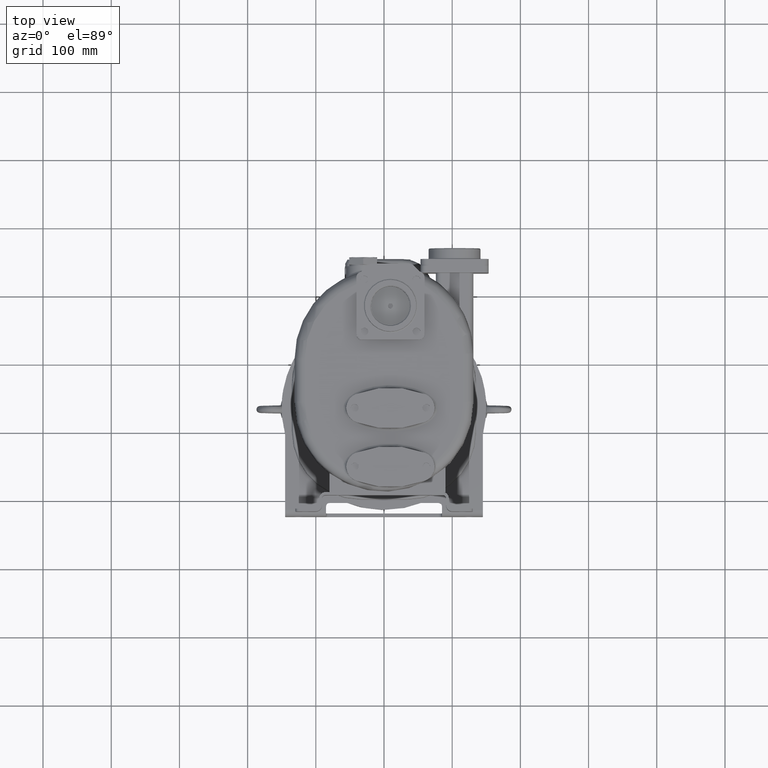
[diagram: clean part render]
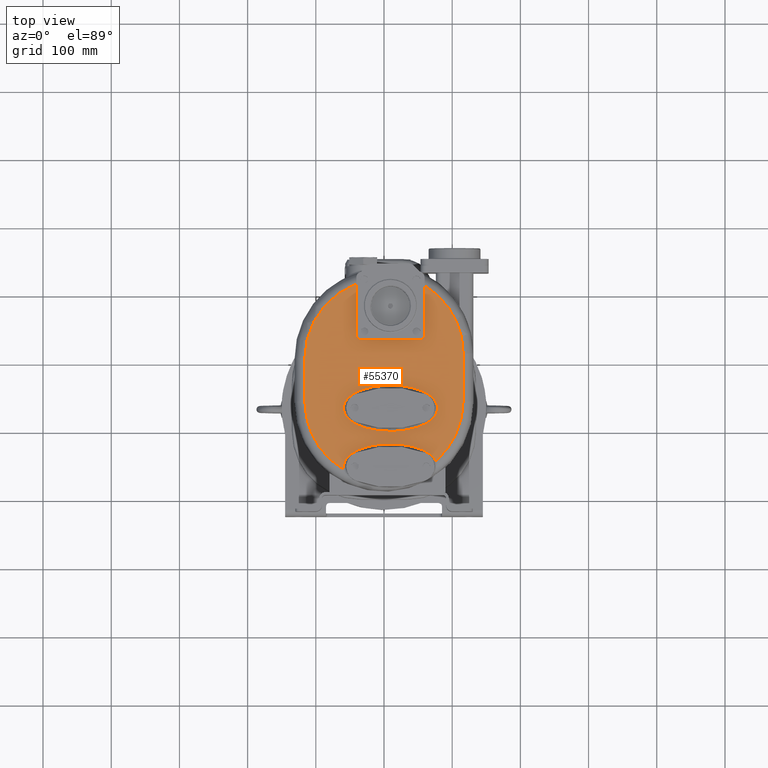
[diagram: same view with one face highlighted and labeled with its STEP entity id]
A machine part, top view. The second image highlights one B-rep face of the part: STEP entity #55370.
In plain terms, the highlighted planar face has unit normal (0, 0, -1).
Its self-contained STEP definition (entity closure, byte-faithful):
#1193=DIRECTION('',(0.E0,1.E0,0.E0));
#1194=VECTOR('',#1193,7.187848566518E1);
#1195=CARTESIAN_POINT('',(5.95E1,2.29E2,9.1E1));
#1196=LINE('',#1195,#1194);
#1238=DIRECTION('',(1.E0,0.E0,0.E0));
#1239=VECTOR('',#1238,8.4E1);
#1240=CARTESIAN_POINT('',(-3.25E1,2.21E2,9.1E1));
#1241=LINE('',#1240,#1239);
#1283=DIRECTION('',(0.E0,-1.E0,0.E0));
#1284=VECTOR('',#1283,7.407165380998E1);
#1285=CARTESIAN_POINT('',(-4.05E1,3.030716538100E2,9.1E1));
#1286=LINE('',#1285,#1284);
#2180=CARTESIAN_POINT('',(-3.25E1,2.29E2,9.1E1));
#2181=DIRECTION('',(0.E0,0.E0,-1.E0));
#2182=DIRECTION('',(0.E0,-1.E0,0.E0));
#2183=AXIS2_PLACEMENT_3D('',#2180,#2181,#2182);
#2185=CARTESIAN_POINT('',(-5.949999999997E1,3.500000000005E1,9.100000769140E1));
#2186=CARTESIAN_POINT('',(-5.949999653014E1,3.481966164502E1,9.100000967008E1));
#2187=CARTESIAN_POINT('',(-5.949451643429E1,3.445820326080E1,9.099999554707E1));
#2188=CARTESIAN_POINT('',(-5.946969862291E1,3.391333252313E1,9.100000108015E1));
#2189=CARTESIAN_POINT('',(-5.942800869430E1,3.336679300740E1,9.100000013233E1));
#2190=CARTESIAN_POINT('',(-5.936937491779E1,3.281920225739E1,9.099999839053E1));
#2191=CARTESIAN_POINT('',(-5.929376160975E1,3.227129884937E1,9.100000630556E1));
#2192=CARTESIAN_POINT('',(-5.920111112034E1,3.172373459291E1,9.099997638722E1));
#2193=CARTESIAN_POINT('',(-5.912812855650E1,3.135953007896E1,9.100005089278E1));
#2194=CARTESIAN_POINT('',(-5.908881446780E1,3.117760166446E1,9.100004992876E1));
#2196=CARTESIAN_POINT('',(0.E0,1.31E2,9.1E1));
#2197=DIRECTION('',(0.E0,0.E0,1.E0));
#2198=DIRECTION('',(-1.E0,0.E0,0.E0));
#2199=AXIS2_PLACEMENT_3D('',#2196,#2197,#2198);
#2201=DIRECTION('',(0.E0,-1.E0,0.E0));
#2202=VECTOR('',#2201,6.337137782137E1);
#2203=CARTESIAN_POINT('',(-1.16E2,1.943713778214E2,9.1E1));
#2204=LINE('',#2203,#2202);
#2205=CARTESIAN_POINT('',(0.E0,1.943713778214E2,9.1E1));
#2206=DIRECTION('',(0.E0,0.E0,1.E0));
#2207=DIRECTION('',(-3.491379310345E-1,9.370713447294E-1,0.E0));
#2208=AXIS2_PLACEMENT_3D('',#2205,#2206,#2207);
#2210=CARTESIAN_POINT('',(0.E0,2.013006266804E2,9.1E1));
#2211=DIRECTION('',(0.E0,0.E0,1.E0));
#2212=DIRECTION('',(1.E0,0.E0,0.E0));
#2213=AXIS2_PLACEMENT_3D('',#2210,#2211,#2212);
#2215=DIRECTION('',(0.E0,1.E0,0.E0));
#2216=VECTOR('',#2215,7.030062668036E1);
#2217=CARTESIAN_POINT('',(1.16E2,1.31E2,9.1E1));
#2218=LINE('',#2217,#2216);
#2219=CARTESIAN_POINT('',(0.E0,1.31E2,9.1E1));
#2220=DIRECTION('',(0.E0,0.E0,1.E0));
#2221=DIRECTION('',(6.581616302015E-1,-7.528766622300E-1,0.E0));
#2222=AXIS2_PLACEMENT_3D('',#2219,#2220,#2221);
#2224=CARTESIAN_POINT('',(7.634674873565E1,4.366630732680E1,9.099992128087E1));
#2225=CARTESIAN_POINT('',(7.623591954856E1,4.388428892146E1,9.099990623291E1));
#2226=CARTESIAN_POINT('',(7.600425811067E1,4.432211420032E1,9.100004351746E1));
#2227=CARTESIAN_POINT('',(7.562565516244E1,4.498342295932E1,9.099998833953E1));
#2228=CARTESIAN_POINT('',(7.521456790700E1,4.564994968869E1,9.100000312441E1));
#2229=CARTESIAN_POINT('',(7.476955411012E1,4.632165363997E1,9.099999916282E1));
#2230=CARTESIAN_POINT('',(7.428918038869E1,4.699842598802E1,9.100000022432E1));
#2231=CARTESIAN_POINT('',(7.377183848311E1,4.768017087183E1,9.099999993989E1));
#2232=CARTESIAN_POINT('',(7.321527536123E1,4.836749061023E1,9.100000001611E1));
#2233=CARTESIAN_POINT('',(7.261721462709E1,4.906074719168E1,9.099999999568E1));
#2234=CARTESIAN_POINT('',(7.197547896219E1,4.976004457628E1,9.100000000116E1));
#2235=CARTESIAN_POINT('',(7.128758283862E1,5.046535889293E1,9.099999999969E1));
#2236=CARTESIAN_POINT('',(7.055072400298E1,5.117679117302E1,9.100000000008E1));
#2237=CARTESIAN_POINT('',(6.976231433797E1,5.189419816287E1,9.099999999998E1));
#2238=CARTESIAN_POINT('',(6.891945931446E1,5.261727563751E1,9.100000000001E1));
#2239=CARTESIAN_POINT('',(6.801883341086E1,5.334585055344E1,9.1E1));
#2240=CARTESIAN_POINT('',(6.705743494183E1,5.407951227066E1,9.1E1));
#2241=CARTESIAN_POINT('',(6.603177854466E1,5.481762664493E1,9.1E1));
#2242=CARTESIAN_POINT('',(6.493838483149E1,5.555956620236E1,9.1E1));
#2243=CARTESIAN_POINT('',(6.377384710976E1,5.630440817789E1,9.1E1));
#2244=CARTESIAN_POINT('',(6.253448013082E1,5.705102957950E1,9.1E1));
#2245=CARTESIAN_POINT('',(6.121688728581E1,5.779820037497E1,9.1E1));
#2246=CARTESIAN_POINT('',(5.981749851625E1,5.854430083567E1,9.1E1));
#2247=CARTESIAN_POINT('',(5.833302629866E1,5.928766511601E1,9.1E1));
#2248=CARTESIAN_POINT('',(5.676028446961E1,6.002618843146E1,9.1E1));
#2249=CARTESIAN_POINT('',(5.509639720881E1,6.075765728232E1,9.1E1));
#2250=CARTESIAN_POINT('',(5.333880452463E1,6.147951640779E1,9.1E1));
#2251=CARTESIAN_POINT('',(5.148536832232E1,6.218896968749E1,9.1E1));
#2252=CARTESIAN_POINT('',(4.953442918438E1,6.288304523965E1,9.1E1));
#2253=CARTESIAN_POINT('',(4.748501263447E1,6.355840844292E1,9.1E1));
#2254=CARTESIAN_POINT('',(4.533679761953E1,6.421163110257E1,9.1E1));
#2255=CARTESIAN_POINT('',(4.309035688096E1,6.483902689590E1,9.1E1));
#2256=CARTESIAN_POINT('',(4.074716158862E1,6.543676484727E1,9.1E1));
#2257=CARTESIAN_POINT('',(3.830958713732E1,6.600098846359E1,9.1E1));
#2258=CARTESIAN_POINT('',(3.578110664967E1,6.652775775335E1,9.1E1));
#2259=CARTESIAN_POINT('',(3.316633740869E1,6.701314165868E1,9.1E1));
#2260=CARTESIAN_POINT('',(3.047086257878E1,6.745341391894E1,9.1E1));
#2261=CARTESIAN_POINT('',(2.770162354879E1,6.784488343396E1,9.1E1));
#2262=CARTESIAN_POINT('',(2.486641120822E1,6.818425221210E1,9.1E1));
#2263=CARTESIAN_POINT('',(2.197416819244E1,6.846848199109E1,9.1E1));
#2264=CARTESIAN_POINT('',(1.903470759520E1,6.869496152501E1,9.1E1));
#2265=CARTESIAN_POINT('',(1.605864099120E1,6.886159472386E1,9.1E1));
#2266=CARTESIAN_POINT('',(1.305715451046E1,6.896675811104E1,9.1E1));
#2267=CARTESIAN_POINT('',(1.004187131840E1,6.900947420078E1,9.1E1));
#2268=CARTESIAN_POINT('',(7.024540483296E0,6.898932175360E1,9.1E1));
#2269=CARTESIAN_POINT('',(4.017124150174E0,6.890649338142E1,9.1E1));
#2270=CARTESIAN_POINT('',(1.031209244925E0,6.876184048859E1,9.1E1));
#2271=CARTESIAN_POINT('',(-1.921828307473E0,6.855669463666E1,9.1E1));
#2272=CARTESIAN_POINT('',(-4.831241793811E0,6.829307982827E1,9.1E1));
#2273=CARTESIAN_POINT('',(-7.686975839886E0,6.797335027053E1,9.1E1));
#2274=CARTESIAN_POINT('',(-1.047982563726E1,6.760046125114E1,9.1E1));
#2275=CARTESIAN_POINT('',(-1.320161167719E1,6.717757909930E1,9.1E1));
#2276=CARTESIAN_POINT('',(-1.584521878216E1,6.670825402815E1,9.1E1));
#2277=CARTESIAN_POINT('',(-1.840451724933E1,6.619621610012E1,9.1E1));
#2278=CARTESIAN_POINT('',(-2.087463231715E1,6.564528484831E1,9.1E1));
#2279=CARTESIAN_POINT('',(-2.325159052093E1,6.505944226801E1,9.1E1));
#2280=CARTESIAN_POINT('',(-2.553263215422E1,6.444255783718E1,9.1E1));
#2281=CARTESIAN_POINT('',(-2.771593615844E1,6.379848045075E1,9.1E1));
#2282=CARTESIAN_POINT('',(-2.980055395630E1,6.313098863607E1,9.1E1));
#2283=CARTESIAN_POINT('',(-3.178647552272E1,6.244359425549E1,9.1E1));
#2284=CARTESIAN_POINT('',(-3.367447942084E1,6.173967258939E1,9.1E1));
#2285=CARTESIAN_POINT('',(-3.546599550190E1,6.102233096757E1,9.1E1));
#2286=CARTESIAN_POINT('',(-3.716304595301E1,6.029438622664E1,9.1E1));
#2287=CARTESIAN_POINT('',(-3.876804257682E1,5.955852464740E1,9.1E1));
#2288=CARTESIAN_POINT('',(-4.028376172088E1,5.881701338161E1,9.1E1));
#2289=CARTESIAN_POINT('',(-4.171329918279E1,5.807206449995E1,9.1E1));
#2290=CARTESIAN_POINT('',(-4.305989420712E1,5.732541240763E1,9.1E1));
#2291=CARTESIAN_POINT('',(-4.432704230581E1,5.657878569088E1,9.1E1));
#2292=CARTESIAN_POINT('',(-4.551810553065E1,5.583348241152E1,9.1E1));
#2293=CARTESIAN_POINT('',(-4.663673794789E1,5.509077440177E1,9.1E1));
#2294=CARTESIAN_POINT('',(-4.768634309590E1,5.435157801988E1,9.1E1));
#2295=CARTESIAN_POINT('',(-4.867053831125E1,5.361660662872E1,9.1E1));
#2296=CARTESIAN_POINT('',(-4.959274032755E1,5.288655588242E1,9.1E1));
#2297=CARTESIAN_POINT('',(-5.045615750690E1,5.216175304245E1,9.1E1));
#2298=CARTESIAN_POINT('',(-5.126417995939E1,5.144246123235E1,9.1E1));
#2299=CARTESIAN_POINT('',(-5.201961796663E1,5.072902638192E1,9.1E1));
#2300=CARTESIAN_POINT('',(-5.272533239298E1,5.002145292432E1,9.1E1));
#2301=CARTESIAN_POINT('',(-5.338408651439E1,4.931979879214E1,9.1E1));
#2302=CARTESIAN_POINT('',(-5.399822802261E1,4.862412490234E1,9.1E1));
#2303=CARTESIAN_POINT('',(-5.457021645381E1,4.793420364726E1,9.1E1));
#2304=CARTESIAN_POINT('',(-5.510217292734E1,4.725001030420E1,9.1E1));
#2305=CARTESIAN_POINT('',(-5.559607878208E1,4.657137932392E1,9.1E1));
#2306=CARTESIAN_POINT('',(-5.605386878028E1,4.589802368800E1,9.1E1));
#2307=CARTESIAN_POINT('',(-5.647720040911E1,4.522982686230E1,9.1E1));
#2308=CARTESIAN_POINT('',(-5.686771584928E1,4.456642984479E1,9.1E1));
#2309=CARTESIAN_POINT('',(-5.722682427135E1,4.390761417957E1,9.1E1));
#2310=CARTESIAN_POINT('',(-5.755584819394E1,4.325315742979E1,9.1E1));
#2311=CARTESIAN_POINT('',(-5.785600579984E1,4.260267646915E1,9.1E1));
#2312=CARTESIAN_POINT('',(-5.812843082222E1,4.195583374795E1,9.099999999999E1));
#2313=CARTESIAN_POINT('',(-5.837414397422E1,4.131215080959E1,9.100000000003E1));
#2314=CARTESIAN_POINT('',(-5.859389792340E1,4.067154153744E1,9.099999999988E1));
#2315=CARTESIAN_POINT('',(-5.878845408130E1,4.003396898141E1,9.100000000046E1));
#2316=CARTESIAN_POINT('',(-5.895849048363E1,3.939901562096E1,9.099999999827E1));
#2317=CARTESIAN_POINT('',(-5.910472315376E1,3.876598470378E1,9.100000000647E1));
#2318=CARTESIAN_POINT('',(-5.922778089033E1,3.813401633474E1,9.099999997585E1));
#2319=CARTESIAN_POINT('',(-5.932786628178E1,3.750309292868E1,9.100000009012E1));
#2320=CARTESIAN_POINT('',(-5.940521712461E1,3.687377088121E1,9.099999966367E1));
#2321=CARTESIAN_POINT('',(-5.946013249716E1,3.624646853708E1,9.100000125522E1));
#2322=CARTESIAN_POINT('',(-5.949278338985E1,3.562153118643E1,9.099999531546E1));
#2323=CARTESIAN_POINT('',(-5.949999584220E1,3.520687115340E1,9.100001009379E1));
#2324=CARTESIAN_POINT('',(-5.949999999997E1,3.500000000005E1,9.100000769140E1));
#2326=CARTESIAN_POINT('',(7.849999999934E1,1.209999999825E2,9.100002976873E1));
#2327=CARTESIAN_POINT('',(7.849992761562E1,1.212089889872E2,9.100006599222E1));
#2328=CARTESIAN_POINT('',(7.849219890357E1,1.216269893767E2,9.099996937291E1));
#2329=CARTESIAN_POINT('',(7.845893867935E1,1.222539462229E2,9.100000820650E1));
#2330=CARTESIAN_POINT('',(7.840367739163E1,1.228811931141E2,9.099999780107E1));
#2331=CARTESIAN_POINT('',(7.832642105446E1,1.235089220575E2,9.100000058920E1));
#2332=CARTESIAN_POINT('',(7.822688290528E1,1.241373113750E2,9.099999984212E1));
#2333=CARTESIAN_POINT('',(7.810465088703E1,1.247665035796E2,9.100000004230E1));
#2334=CARTESIAN_POINT('',(7.795914833509E1,1.253964641631E2,9.099999998867E1));
#2335=CARTESIAN_POINT('',(7.779008056208E1,1.260278109559E2,9.100000000304E1));
#2336=CARTESIAN_POINT('',(7.759680121310E1,1.266617583855E2,9.099999999919E1));
#2337=CARTESIAN_POINT('',(7.737846503212E1,1.272993002829E2,9.100000000022E1));
#2338=CARTESIAN_POINT('',(7.713407249661E1,1.279411465157E2,9.099999999994E1));
#2339=CARTESIAN_POINT('',(7.686299434873E1,1.285866558382E2,9.100000000002E1));
#2340=CARTESIAN_POINT('',(7.656455821451E1,1.292351134745E2,9.1E1));
#2341=CARTESIAN_POINT('',(7.623815209005E1,1.298859880422E2,9.1E1));
#2342=CARTESIAN_POINT('',(7.588217024686E1,1.305408311377E2,9.1E1));
#2343=CARTESIAN_POINT('',(7.549474793897E1,1.312009591928E2,9.1E1));
#2344=CARTESIAN_POINT('',(7.507418688482E1,1.318669354104E2,9.1E1));
#2345=CARTESIAN_POINT('',(7.461935548003E1,1.325381952809E2,9.1E1));
#2346=CARTESIAN_POINT('',(7.412911822654E1,1.332141469229E2,9.1E1));
#2347=CARTESIAN_POINT('',(7.360135916157E1,1.338953844826E2,9.1E1));
#2348=CARTESIAN_POINT('',(7.303380020100E1,1.345824369952E2,9.1E1));
#2349=CARTESIAN_POINT('',(7.242422009113E1,1.352755582272E2,9.1E1));
#2350=CARTESIAN_POINT('',(7.177042576833E1,1.359747604409E2,9.1E1));
#2351=CARTESIAN_POINT('',(7.106970218984E1,1.366801527912E2,9.1E1));
#2352=CARTESIAN_POINT('',(7.031938981153E1,1.373916778025E2,9.1E1));
#2353=CARTESIAN_POINT('',(6.951698498771E1,1.381090617436E2,9.1E1));
#2354=CARTESIAN_POINT('',(6.865929352639E1,1.388321272567E2,9.1E1));
#2355=CARTESIAN_POINT('',(6.774321824092E1,1.395605591095E2,9.1E1));
#2356=CARTESIAN_POINT('',(6.676575263717E1,1.402938451072E2,9.1E1));
#2357=CARTESIAN_POINT('',(6.572326679996E1,1.410313886340E2,9.1E1));
#2358=CARTESIAN_POINT('',(6.461249692826E1,1.417724797047E2,9.1E1));
#2359=CARTESIAN_POINT('',(6.342990575365E1,1.425161018842E2,9.1E1));
#2360=CARTESIAN_POINT('',(6.217203069811E1,1.432611115221E2,9.1E1));
#2361=CARTESIAN_POINT('',(6.083547492816E1,1.440061424772E2,9.1E1));
#2362=CARTESIAN_POINT('',(5.941673749575E1,1.447496309239E2,9.1E1));
#2363=CARTESIAN_POINT('',(5.791259942696E1,1.454897761605E2,9.1E1));
#2364=CARTESIAN_POINT('',(5.631998559319E1,1.462245099165E2,9.1E1));
#2365=CARTESIAN_POINT('',(5.463614500053E1,1.469514852984E2,9.1E1));
#2366=CARTESIAN_POINT('',(5.285861348603E1,1.476681985137E2,9.1E1));
#2367=CARTESIAN_POINT('',(5.098545029338E1,1.483717453165E2,9.1E1));
#2368=CARTESIAN_POINT('',(4.901521776638E1,1.490591272500E2,9.1E1));
#2369=CARTESIAN_POINT('',(4.694714472128E1,1.497270044215E2,9.1E1));
#2370=CARTESIAN_POINT('',(4.478121629553E1,1.503718772856E2,9.1E1));
#2371=CARTESIAN_POINT('',(4.251815853556E1,1.509901255730E2,9.1E1));
#2372=CARTESIAN_POINT('',(4.015966414029E1,1.515779294036E2,9.1E1));
#2373=CARTESIAN_POINT('',(3.770841489725E1,1.521314320420E2,9.1E1));
#2374=CARTESIAN_POINT('',(3.516804805815E1,1.526467955655E2,9.1E1));
#2375=CARTESIAN_POINT('',(3.254343664376E1,1.531201326125E2,9.1E1));
#2376=CARTESIAN_POINT('',(2.984044849649E1,1.535477806740E2,9.1E1));
#2377=CARTESIAN_POINT('',(2.706600151479E1,1.539262242805E2,9.1E1));
#2378=CARTESIAN_POINT('',(2.422823910650E1,1.542521938771E2,9.1E1));
#2379=CARTESIAN_POINT('',(2.133595119623E1,1.545228774542E2,9.1E1));
#2380=CARTESIAN_POINT('',(1.839922929746E1,1.547357059216E2,9.1E1));
#2381=CARTESIAN_POINT('',(1.542846276781E1,1.548888141503E2,9.1E1));
#2382=CARTESIAN_POINT('',(1.243495452128E1,1.549806302462E2,9.1E1));
#2383=CARTESIAN_POINT('',(9.430092195103E0,1.550104009219E2,9.1E1));
#2384=CARTESIAN_POINT('',(6.425596396743E0,1.549777387126E2,9.1E1));
#2385=CARTESIAN_POINT('',(3.433241382393E0,1.548830504749E2,9.1E1));
#2386=CARTESIAN_POINT('',(4.643411524435E-1,1.547271910816E2,9.1E1));
#2387=CARTESIAN_POINT('',(-2.469798478651E0,1.545116830744E2,9.1E1));
#2388=CARTESIAN_POINT('',(-5.358899181897E0,1.542385173369E2,9.1E1));
#2389=CARTESIAN_POINT('',(-8.192904181548E0,1.539102078524E2,9.1E1));
#2390=CARTESIAN_POINT('',(-1.096316995739E1,1.535296352843E2,9.1E1));
#2391=CARTESIAN_POINT('',(-1.366153668305E1,1.531000834012E2,9.1E1));
#2392=CARTESIAN_POINT('',(-1.628135695962E1,1.526250078150E2,9.1E1));
#2393=CARTESIAN_POINT('',(-1.881663288059E1,1.521081876936E2,9.1E1));
#2394=CARTESIAN_POINT('',(-2.126273401996E1,1.515533816234E2,9.1E1));
#2395=CARTESIAN_POINT('',(-2.361592903349E1,1.509645244300E2,9.1E1));
#2396=CARTESIAN_POINT('',(-2.587356122193E1,1.503454691941E2,9.1E1));
#2397=CARTESIAN_POINT('',(-2.803397406505E1,1.496999922077E2,9.1E1));
#2398=CARTESIAN_POINT('',(-3.009637898248E1,1.490318079849E2,9.1E1));
#2399=CARTESIAN_POINT('',(-3.206082447234E1,1.483443977244E2,9.1E1));
#2400=CARTESIAN_POINT('',(-3.392825548745E1,1.476410108353E2,9.1E1));
#2401=CARTESIAN_POINT('',(-3.570014891302E1,1.469247348710E2,9.1E1));
#2402=CARTESIAN_POINT('',(-3.737857827911E1,1.461982793180E2,9.1E1));
#2403=CARTESIAN_POINT('',(-3.896599760944E1,1.454642904282E2,9.1E1));
#2404=CARTESIAN_POINT('',(-4.046516653456E1,1.447249688369E2,9.1E1));
#2405=CARTESIAN_POINT('',(-4.187919166238E1,1.439824724881E2,9.1E1));
#2406=CARTESIAN_POINT('',(-4.321128901928E1,1.432384884787E2,9.1E1));
#2407=CARTESIAN_POINT('',(-4.446491318001E1,1.424947084739E2,9.1E1));
#2408=CARTESIAN_POINT('',(-4.564340264149E1,1.417523806769E2,9.1E1));
#2409=CARTESIAN_POINT('',(-4.675037499890E1,1.410127609012E2,9.1E1));
#2410=CARTESIAN_POINT('',(-4.778919409954E1,1.402766936807E2,9.1E1));
#2411=CARTESIAN_POINT('',(-4.876346387182E1,1.395448931910E2,9.1E1));
#2412=CARTESIAN_POINT('',(-4.967650613112E1,1.388180189474E2,9.1E1));
#2413=CARTESIAN_POINT('',(-5.053155154721E1,1.380963423265E2,9.1E1));
#2414=CARTESIAN_POINT('',(-5.133189176119E1,1.373801633060E2,9.1E1));
#2415=CARTESIAN_POINT('',(-5.208028016145E1,1.366697937818E2,9.1E1));
#2416=CARTESIAN_POINT('',(-5.277957530295E1,1.359652088936E2,9.1E1));
#2417=CARTESIAN_POINT('',(-5.343244348983E1,1.352665077669E2,9.1E1));
#2418=CARTESIAN_POINT('',(-5.404121509670E1,1.345737118753E2,9.1E1));
#2419=CARTESIAN_POINT('',(-5.460830917762E1,1.338866038930E2,9.1E1));
#2420=CARTESIAN_POINT('',(-5.513578639092E1,1.332051806344E2,9.1E1));
#2421=CARTESIAN_POINT('',(-5.562562163559E1,1.325292438858E2,9.1E1));
#2422=CARTESIAN_POINT('',(-5.607969837878E1,1.318585380667E2,9.1E1));
#2423=CARTESIAN_POINT('',(-5.649965459688E1,1.311929369038E2,9.1E1));
#2424=CARTESIAN_POINT('',(-5.688710797113E1,1.305320791443E2,9.1E1));
#2425=CARTESIAN_POINT('',(-5.724343617396E1,1.298757704681E2,9.1E1));
#2426=CARTESIAN_POINT('',(-5.756995137400E1,1.292237711500E2,9.1E1));
#2427=CARTESIAN_POINT('',(-5.786785013233E1,1.285757062066E2,9.100000000001E1));
#2428=CARTESIAN_POINT('',(-5.813825714870E1,1.279312297107E2,9.099999999997E1));
#2429=CARTESIAN_POINT('',(-5.838216685490E1,1.272898817448E2,9.100000000011E1));
#2430=CARTESIAN_POINT('',(-5.860032073477E1,1.266515933297E2,9.099999999960E1));
#2431=CARTESIAN_POINT('',(-5.879347135739E1,1.260163222831E2,9.100000000148E1));
#2432=CARTESIAN_POINT('',(-5.896229323823E1,1.253836252053E2,9.099999999448E1));
#2433=CARTESIAN_POINT('',(-5.910749510339E1,1.247528123243E2,9.100000002062E1));
#2434=CARTESIAN_POINT('',(-5.922969240762E1,1.241230282071E2,9.099999992306E1));
#2435=CARTESIAN_POINT('',(-5.932907442089E1,1.234943052675E2,9.100000028716E1));
#2436=CARTESIAN_POINT('',(-5.940588288552E1,1.228671859480E2,9.099999892831E1));
#2437=CARTESIAN_POINT('',(-5.946041253910E1,1.222420858428E2,9.100000399961E1));
#2438=CARTESIAN_POINT('',(-5.949283374531E1,1.216193459158E2,9.099998507325E1));
#2439=CARTESIAN_POINT('',(-5.949999585588E1,1.212061437215E2,9.100003216267E1));
#2440=CARTESIAN_POINT('',(-5.949999999934E1,1.210000000175E2,9.100002976873E1));
#2442=CARTESIAN_POINT('',(-5.949999999934E1,1.210000000175E2,9.100002976873E1));
#2443=CARTESIAN_POINT('',(-5.949992761562E1,1.207910110128E2,9.100006599222E1));
#2444=CARTESIAN_POINT('',(-5.949219890357E1,1.203730106233E2,9.099996937291E1));
#2445=CARTESIAN_POINT('',(-5.945893867935E1,1.197460537771E2,9.100000820650E1));
#2446=CARTESIAN_POINT('',(-5.940367739163E1,1.191188068859E2,9.099999780107E1));
#2447=CARTESIAN_POINT('',(-5.932642105446E1,1.184910779425E2,9.100000058920E1));
#2448=CARTESIAN_POINT('',(-5.922688290528E1,1.178626886250E2,9.099999984212E1));
#2449=CARTESIAN_POINT('',(-5.910465088703E1,1.172334964204E2,9.100000004230E1));
#2450=CARTESIAN_POINT('',(-5.895914833509E1,1.166035358369E2,9.099999998867E1));
#2451=CARTESIAN_POINT('',(-5.879008056208E1,1.159721890441E2,9.100000000304E1));
#2452=CARTESIAN_POINT('',(-5.859680121310E1,1.153382416145E2,9.099999999919E1));
#2453=CARTESIAN_POINT('',(-5.837846503212E1,1.147006997171E2,9.100000000022E1));
#2454=CARTESIAN_POINT('',(-5.813407249661E1,1.140588534843E2,9.099999999994E1));
#2455=CARTESIAN_POINT('',(-5.786299434873E1,1.134133441618E2,9.100000000002E1));
#2456=CARTESIAN_POINT('',(-5.756455821451E1,1.127648865255E2,9.1E1));
#2457=CARTESIAN_POINT('',(-5.723815209005E1,1.121140119578E2,9.1E1));
#2458=CARTESIAN_POINT('',(-5.688217024686E1,1.114591688623E2,9.1E1));
#2459=CARTESIAN_POINT('',(-5.649474793897E1,1.107990408072E2,9.1E1));
#2460=CARTESIAN_POINT('',(-5.607418688482E1,1.101330645896E2,9.1E1));
#2461=CARTESIAN_POINT('',(-5.561935548003E1,1.094618047191E2,9.1E1));
#2462=CARTESIAN_POINT('',(-5.512911822654E1,1.087858530771E2,9.1E1));
#2463=CARTESIAN_POINT('',(-5.460135916157E1,1.081046155174E2,9.1E1));
#2464=CARTESIAN_POINT('',(-5.403380020100E1,1.074175630048E2,9.1E1));
#2465=CARTESIAN_POINT('',(-5.342422009113E1,1.067244417728E2,9.1E1));
#2466=CARTESIAN_POINT('',(-5.277042576833E1,1.060252395591E2,9.1E1));
#2467=CARTESIAN_POINT('',(-5.206970218984E1,1.053198472088E2,9.1E1));
#2468=CARTESIAN_POINT('',(-5.131938981153E1,1.046083221975E2,9.1E1));
#2469=CARTESIAN_POINT('',(-5.051698498771E1,1.038909382564E2,9.1E1));
#2470=CARTESIAN_POINT('',(-4.965929352639E1,1.031678727433E2,9.1E1));
#2471=CARTESIAN_POINT('',(-4.874321824092E1,1.024394408905E2,9.1E1));
#2472=CARTESIAN_POINT('',(-4.776575263717E1,1.017061548928E2,9.1E1));
#2473=CARTESIAN_POINT('',(-4.672326679996E1,1.009686113660E2,9.1E1));
#2474=CARTESIAN_POINT('',(-4.561249692826E1,1.002275202953E2,9.1E1));
#2475=CARTESIAN_POINT('',(-4.442990575365E1,9.948389811584E1,9.1E1));
#2476=CARTESIAN_POINT('',(-4.317203069811E1,9.873888847789E1,9.1E1));
#2477=CARTESIAN_POINT('',(-4.183547492816E1,9.799385752279E1,9.1E1));
#2478=CARTESIAN_POINT('',(-4.041673749575E1,9.725036907610E1,9.1E1));
#2479=CARTESIAN_POINT('',(-3.891259942696E1,9.651022383951E1,9.1E1));
#2480=CARTESIAN_POINT('',(-3.731998559319E1,9.577549008355E1,9.1E1));
#2481=CARTESIAN_POINT('',(-3.563614500054E1,9.504851470158E1,9.1E1));
#2482=CARTESIAN_POINT('',(-3.385861348603E1,9.433180148631E1,9.1E1));
#2483=CARTESIAN_POINT('',(-3.198545029339E1,9.362825468353E1,9.1E1));
#2484=CARTESIAN_POINT('',(-3.001521776638E1,9.294087274997E1,9.1E1));
#2485=CARTESIAN_POINT('',(-2.794714472128E1,9.227299557854E1,9.1E1));
#2486=CARTESIAN_POINT('',(-2.578121629553E1,9.162812271437E1,9.1E1));
#2487=CARTESIAN_POINT('',(-2.351815853556E1,9.100987442698E1,9.1E1));
#2488=CARTESIAN_POINT('',(-2.115966414028E1,9.042207059637E1,9.1E1));
#2489=CARTESIAN_POINT('',(-1.870841489725E1,8.986856795796E1,9.1E1));
#2490=CARTESIAN_POINT('',(-1.616804805815E1,8.935320443451E1,9.1E1));
#2491=CARTESIAN_POINT('',(-1.354343664375E1,8.887986738745E1,9.1E1));
#2492=CARTESIAN_POINT('',(-1.084044849649E1,8.845221932598E1,9.1E1));
#2493=CARTESIAN_POINT('',(-8.066001514781E0,8.807377571945E1,9.1E1));
#2494=CARTESIAN_POINT('',(-5.228239106491E0,8.774780612293E1,9.1E1));
#2495=CARTESIAN_POINT('',(-2.335951196227E0,8.747712254582E1,9.1E1));
#2496=CARTESIAN_POINT('',(6.007707025491E-1,8.726429407843E1,9.1E1));
#2497=CARTESIAN_POINT('',(3.571537232197E0,8.711118584973E1,9.1E1));
#2498=CARTESIAN_POINT('',(6.565045478727E0,8.701936975379E1,9.1E1));
#2499=CARTESIAN_POINT('',(9.569907804904E0,8.698959907807E1,9.1E1));
#2500=CARTESIAN_POINT('',(1.257440360326E1,8.702226128735E1,9.1E1));
#2501=CARTESIAN_POINT('',(1.556675861761E1,8.711694952509E1,9.1E1));
#2502=CARTESIAN_POINT('',(1.853565884756E1,8.727280891841E1,9.1E1));
#2503=CARTESIAN_POINT('',(2.146979847866E1,8.748831692557E1,9.1E1));
#2504=CARTESIAN_POINT('',(2.435889918190E1,8.776148266313E1,9.1E1));
#2505=CARTESIAN_POINT('',(2.719290418155E1,8.808979214757E1,9.1E1));
#2506=CARTESIAN_POINT('',(2.996316995740E1,8.847036471567E1,9.1E1));
#2507=CARTESIAN_POINT('',(3.266153668306E1,8.889991659875E1,9.1E1));
#2508=CARTESIAN_POINT('',(3.528135695962E1,8.937499218503E1,9.1E1));
#2509=CARTESIAN_POINT('',(3.781663288060E1,8.989181230642E1,9.1E1));
#2510=CARTESIAN_POINT('',(4.026273401997E1,9.044661837664E1,9.1E1));
#2511=CARTESIAN_POINT('',(4.261592903350E1,9.103547557005E1,9.1E1));
#2512=CARTESIAN_POINT('',(4.487356122194E1,9.165453080592E1,9.1E1));
#2513=CARTESIAN_POINT('',(4.703397406506E1,9.230000779233E1,9.1E1));
#2514=CARTESIAN_POINT('',(4.909637898248E1,9.296819201511E1,9.1E1));
#2515=CARTESIAN_POINT('',(5.106082447234E1,9.365560227560E1,9.1E1));
#2516=CARTESIAN_POINT('',(5.292825548745E1,9.435898916472E1,9.1E1));
#2517=CARTESIAN_POINT('',(5.470014891302E1,9.507526512902E1,9.1E1));
#2518=CARTESIAN_POINT('',(5.637857827911E1,9.580172068200E1,9.1E1));
#2519=CARTESIAN_POINT('',(5.796599760945E1,9.653570957181E1,9.1E1));
#2520=CARTESIAN_POINT('',(5.946516653456E1,9.727503116306E1,9.1E1));
#2521=CARTESIAN_POINT('',(6.087919166238E1,9.801752751193E1,9.1E1));
#2522=CARTESIAN_POINT('',(6.221128901928E1,9.876151152132E1,9.1E1));
#2523=CARTESIAN_POINT('',(6.346491318001E1,9.950529152608E1,9.1E1));
#2524=CARTESIAN_POINT('',(6.464340264149E1,1.002476193231E2,9.1E1));
#2525=CARTESIAN_POINT('',(6.575037499890E1,1.009872390988E2,9.1E1));
#2526=CARTESIAN_POINT('',(6.678919409955E1,1.017233063193E2,9.1E1));
#2527=CARTESIAN_POINT('',(6.776346387182E1,1.024551068090E2,9.1E1));
#2528=CARTESIAN_POINT('',(6.867650613112E1,1.031819810526E2,9.1E1));
#2529=CARTESIAN_POINT('',(6.953155154721E1,1.039036576735E2,9.1E1));
#2530=CARTESIAN_POINT('',(7.033189176119E1,1.046198366940E2,9.1E1));
#2531=CARTESIAN_POINT('',(7.108028016145E1,1.053302062182E2,9.1E1));
#2532=CARTESIAN_POINT('',(7.177957530295E1,1.060347911064E2,9.1E1));
#2533=CARTESIAN_POINT('',(7.243244348983E1,1.067334922331E2,9.1E1));
#2534=CARTESIAN_POINT('',(7.304121509670E1,1.074262881247E2,9.1E1));
#2535=CARTESIAN_POINT('',(7.360830917763E1,1.081133961070E2,9.1E1));
#2536=CARTESIAN_POINT('',(7.413578639092E1,1.087948193656E2,9.1E1));
#2537=CARTESIAN_POINT('',(7.462562163559E1,1.094707561142E2,9.1E1));
#2538=CARTESIAN_POINT('',(7.507969837878E1,1.101414619333E2,9.1E1));
#2539=CARTESIAN_POINT('',(7.549965459688E1,1.108070630962E2,9.1E1));
#2540=CARTESIAN_POINT('',(7.588710797113E1,1.114679208557E2,9.1E1));
#2541=CARTESIAN_POINT('',(7.624343617396E1,1.121242295319E2,9.1E1));
#2542=CARTESIAN_POINT('',(7.656995137400E1,1.127762288500E2,9.1E1));
#2543=CARTESIAN_POINT('',(7.686785013233E1,1.134242937934E2,9.100000000001E1));
#2544=CARTESIAN_POINT('',(7.713825714870E1,1.140687702893E2,9.099999999997E1));
#2545=CARTESIAN_POINT('',(7.738216685490E1,1.147101182552E2,9.100000000011E1));
#2546=CARTESIAN_POINT('',(7.760032073477E1,1.153484066703E2,9.099999999960E1));
#2547=CARTESIAN_POINT('',(7.779347135739E1,1.159836777169E2,9.100000000148E1));
#2548=CARTESIAN_POINT('',(7.796229323823E1,1.166163747947E2,9.099999999448E1));
#2549=CARTESIAN_POINT('',(7.810749510339E1,1.172471876757E2,9.100000002062E1));
#2550=CARTESIAN_POINT('',(7.822969240762E1,1.178769717929E2,9.099999992306E1));
#2551=CARTESIAN_POINT('',(7.832907442089E1,1.185056947325E2,9.100000028716E1));
#2552=CARTESIAN_POINT('',(7.840588288552E1,1.191328140520E2,9.099999892831E1));
#2553=CARTESIAN_POINT('',(7.846041253910E1,1.197579141572E2,9.100000399961E1));
#2554=CARTESIAN_POINT('',(7.849283374531E1,1.203806540842E2,9.099998507325E1));
#2555=CARTESIAN_POINT('',(7.849999585588E1,1.207938562785E2,9.100003216267E1));
#2556=CARTESIAN_POINT('',(7.849999999934E1,1.209999999825E2,9.100002976873E1));
#43299=CARTESIAN_POINT('',(5.15E1,2.29E2,9.1E1));
#43300=DIRECTION('',(0.E0,0.E0,-1.E0));
#43301=DIRECTION('',(1.E0,0.E0,0.E0));
#43302=AXIS2_PLACEMENT_3D('',#43299,#43300,#43301);
#44199=CARTESIAN_POINT('',(-3.25E1,2.21E2,9.1E1));
#44200=CARTESIAN_POINT('',(5.15E1,2.21E2,9.1E1));
#44201=VERTEX_POINT('',#44199);
#44202=VERTEX_POINT('',#44200);
#44203=CARTESIAN_POINT('',(5.95E1,2.29E2,9.1E1));
#44204=VERTEX_POINT('',#44203);
#44205=CARTESIAN_POINT('',(-4.05E1,2.29E2,9.1E1));
#44206=VERTEX_POINT('',#44205);
#44215=CARTESIAN_POINT('',(1.16E2,2.013006266804E2,9.1E1));
#44216=CARTESIAN_POINT('',(5.95E1,3.008784856652E2,9.1E1));
#44217=VERTEX_POINT('',#44215);
#44218=VERTEX_POINT('',#44216);
#44219=CARTESIAN_POINT('',(1.16E2,1.31E2,9.1E1));
#44220=VERTEX_POINT('',#44219);
#44225=CARTESIAN_POINT('',(-1.16E2,1.943713778214E2,9.1E1));
#44226=CARTESIAN_POINT('',(-1.16E2,1.31E2,9.1E1));
#44227=VERTEX_POINT('',#44225);
#44228=VERTEX_POINT('',#44226);
#44231=CARTESIAN_POINT('',(-4.05E1,3.030716538100E2,9.1E1));
#44232=VERTEX_POINT('',#44231);
#44263=VERTEX_POINT('',#2326);
#44264=VERTEX_POINT('',#2440);
#44279=VERTEX_POINT('',#2185);
#44280=VERTEX_POINT('',#2194);
#44282=VERTEX_POINT('',#2224);
#55335=CARTESIAN_POINT('',(0.E0,1.31E2,9.1E1));
#55336=DIRECTION('',(0.E0,0.E0,-1.E0));
#55337=DIRECTION('',(-1.E0,0.E0,0.E0));
#55338=AXIS2_PLACEMENT_3D('',#55335,#55336,#55337);
#55339=PLANE('',#55338);
#55341=ORIENTED_EDGE('',*,*,#55340,.T.);
#55343=ORIENTED_EDGE('',*,*,#55342,.F.);
#55345=ORIENTED_EDGE('',*,*,#55344,.F.);
#55347=ORIENTED_EDGE('',*,*,#55346,.F.);
#55348=ORIENTED_EDGE('',*,*,#54202,.T.);
#55349=ORIENTED_EDGE('',*,*,#55327,.F.);
#55350=ORIENTED_EDGE('',*,*,#54145,.T.);
#55352=ORIENTED_EDGE('',*,*,#55351,.F.);
#55353=ORIENTED_EDGE('',*,*,#54086,.T.);
#55355=ORIENTED_EDGE('',*,*,#55354,.F.);
#55357=ORIENTED_EDGE('',*,*,#55356,.F.);
#55359=ORIENTED_EDGE('',*,*,#55358,.F.);
#55361=ORIENTED_EDGE('',*,*,#55360,.T.);
#55362=EDGE_LOOP('',(#55341,#55343,#55345,#55347,#55348,#55349,#55350,#55352,
#55353,#55355,#55357,#55359,#55361));
#55363=FACE_OUTER_BOUND('',#55362,.F.);
#55365=ORIENTED_EDGE('',*,*,#55364,.T.);
#55367=ORIENTED_EDGE('',*,*,#55366,.T.);
#55368=EDGE_LOOP('',(#55365,#55367));
#55369=FACE_BOUND('',#55368,.F.);
#55370=ADVANCED_FACE('',(#55363,#55369),#55339,.F.);
#2184=CIRCLE('',#2183,8.E0);
#2195=B_SPLINE_CURVE_WITH_KNOTS('',3,(#2185,#2186,#2187,#2188,#2189,#2190,#2191,
#2192,#2193,#2194),.UNSPECIFIED.,.F.,.F.,(4,1,1,1,1,1,1,4),(0.E0,
1.428571428571E-1,2.857142857143E-1,4.285714285714E-1,5.714285714286E-1,
7.142857142857E-1,8.571428571429E-1,1.E0),.UNSPECIFIED.);
#2200=CIRCLE('',#2199,1.16E2);
#2209=CIRCLE('',#2208,1.16E2);
#2214=CIRCLE('',#2213,1.16E2);
#2223=CIRCLE('',#2222,1.16E2);
#2325=B_SPLINE_CURVE_WITH_KNOTS('',3,(#2224,#2225,#2226,#2227,#2228,#2229,#2230,
#2231,#2232,#2233,#2234,#2235,#2236,#2237,#2238,#2239,#2240,#2241,#2242,#2243,
#2244,#2245,#2246,#2247,#2248,#2249,#2250,#2251,#2252,#2253,#2254,#2255,#2256,
#2257,#2258,#2259,#2260,#2261,#2262,#2263,#2264,#2265,#2266,#2267,#2268,#2269,
#2270,#2271,#2272,#2273,#2274,#2275,#2276,#2277,#2278,#2279,#2280,#2281,#2282,
#2283,#2284,#2285,#2286,#2287,#2288,#2289,#2290,#2291,#2292,#2293,#2294,#2295,
#2296,#2297,#2298,#2299,#2300,#2301,#2302,#2303,#2304,#2305,#2306,#2307,#2308,
#2309,#2310,#2311,#2312,#2313,#2314,#2315,#2316,#2317,#2318,#2319,#2320,#2321,
#2322,#2323,#2324),.UNSPECIFIED.,.F.,.F.,(4,1,1,1,1,1,1,1,1,1,1,1,1,1,1,1,1,1,1,
1,1,1,1,1,1,1,1,1,1,1,1,1,1,1,1,1,1,1,1,1,1,1,1,1,1,1,1,1,1,1,1,1,1,1,1,1,1,1,1,
1,1,1,1,1,1,1,1,1,1,1,1,1,1,1,1,1,1,1,1,1,1,1,1,1,1,1,1,1,1,1,1,1,1,1,1,1,1,1,
4),(0.E0,1.020408163265E-2,2.040816326531E-2,3.061224489796E-2,
4.081632653061E-2,5.102040816327E-2,6.122448979592E-2,7.142857142857E-2,
8.163265306122E-2,9.183673469388E-2,1.020408163265E-1,1.122448979592E-1,
1.224489795918E-1,1.326530612245E-1,1.428571428571E-1,1.530612244898E-1,
1.632653061224E-1,1.734693877551E-1,1.836734693878E-1,1.938775510204E-1,
2.040816326531E-1,2.142857142857E-1,2.244897959184E-1,2.346938775510E-1,
2.448979591837E-1,2.551020408163E-1,2.653061224490E-1,2.755102040816E-1,
2.857142857143E-1,2.959183673469E-1,3.061224489796E-1,3.163265306122E-1,
3.265306122449E-1,3.367346938776E-1,3.469387755102E-1,3.571428571429E-1,
3.673469387755E-1,3.775510204082E-1,3.877551020408E-1,3.979591836735E-1,
4.081632653061E-1,4.183673469388E-1,4.285714285714E-1,4.387755102041E-1,
4.489795918367E-1,4.591836734694E-1,4.693877551020E-1,4.795918367347E-1,
4.897959183673E-1,5.E-1,5.102040816327E-1,5.204081632653E-1,5.306122448980E-1,
5.408163265306E-1,5.510204081633E-1,5.612244897959E-1,5.714285714286E-1,
5.816326530612E-1,5.918367346939E-1,6.020408163265E-1,6.122448979592E-1,
6.224489795918E-1,6.326530612245E-1,6.428571428571E-1,6.530612244898E-1,
6.632653061224E-1,6.734693877551E-1,6.836734693878E-1,6.938775510204E-1,
7.040816326531E-1,7.142857142857E-1,7.244897959184E-1,7.346938775510E-1,
7.448979591837E-1,7.551020408163E-1,7.653061224490E-1,7.755102040816E-1,
7.857142857143E-1,7.959183673469E-1,8.061224489796E-1,8.163265306122E-1,
8.265306122449E-1,8.367346938776E-1,8.469387755102E-1,8.571428571429E-1,
8.673469387755E-1,8.775510204082E-1,8.877551020408E-1,8.979591836735E-1,
9.081632653061E-1,9.183673469388E-1,9.285714285714E-1,9.387755102041E-1,
9.489795918367E-1,9.591836734694E-1,9.693877551020E-1,9.795918367347E-1,
9.897959183673E-1,1.E0),.UNSPECIFIED.);
#2441=B_SPLINE_CURVE_WITH_KNOTS('',3,(#2326,#2327,#2328,#2329,#2330,#2331,#2332,
#2333,#2334,#2335,#2336,#2337,#2338,#2339,#2340,#2341,#2342,#2343,#2344,#2345,
#2346,#2347,#2348,#2349,#2350,#2351,#2352,#2353,#2354,#2355,#2356,#2357,#2358,
#2359,#2360,#2361,#2362,#2363,#2364,#2365,#2366,#2367,#2368,#2369,#2370,#2371,
#2372,#2373,#2374,#2375,#2376,#2377,#2378,#2379,#2380,#2381,#2382,#2383,#2384,
#2385,#2386,#2387,#2388,#2389,#2390,#2391,#2392,#2393,#2394,#2395,#2396,#2397,
#2398,#2399,#2400,#2401,#2402,#2403,#2404,#2405,#2406,#2407,#2408,#2409,#2410,
#2411,#2412,#2413,#2414,#2415,#2416,#2417,#2418,#2419,#2420,#2421,#2422,#2423,
#2424,#2425,#2426,#2427,#2428,#2429,#2430,#2431,#2432,#2433,#2434,#2435,#2436,
#2437,#2438,#2439,#2440),.UNSPECIFIED.,.F.,.F.,(4,1,1,1,1,1,1,1,1,1,1,1,1,1,1,1,
1,1,1,1,1,1,1,1,1,1,1,1,1,1,1,1,1,1,1,1,1,1,1,1,1,1,1,1,1,1,1,1,1,1,1,1,1,1,1,1,
1,1,1,1,1,1,1,1,1,1,1,1,1,1,1,1,1,1,1,1,1,1,1,1,1,1,1,1,1,1,1,1,1,1,1,1,1,1,1,1,
1,1,1,1,1,1,1,1,1,1,1,1,1,1,1,1,4),(0.E0,8.928571428571E-3,1.785714285714E-2,
2.678571428571E-2,3.571428571429E-2,4.464285714286E-2,5.357142857143E-2,6.25E-2,
7.142857142857E-2,8.035714285714E-2,8.928571428571E-2,9.821428571429E-2,
1.071428571429E-1,1.160714285714E-1,1.25E-1,1.339285714286E-1,1.428571428571E-1,
1.517857142857E-1,1.607142857143E-1,1.696428571429E-1,1.785714285714E-1,
1.875E-1,1.964285714286E-1,2.053571428571E-1,2.142857142857E-1,
2.232142857143E-1,2.321428571429E-1,2.410714285714E-1,2.5E-1,2.589285714286E-1,
2.678571428571E-1,2.767857142857E-1,2.857142857143E-1,2.946428571429E-1,
3.035714285714E-1,3.125E-1,3.214285714286E-1,3.303571428571E-1,
3.392857142857E-1,3.482142857143E-1,3.571428571429E-1,3.660714285714E-1,3.75E-1,
3.839285714286E-1,3.928571428571E-1,4.017857142857E-1,4.107142857143E-1,
4.196428571429E-1,4.285714285714E-1,4.375E-1,4.464285714286E-1,
4.553571428571E-1,4.642857142857E-1,4.732142857143E-1,4.821428571429E-1,
4.910714285714E-1,5.E-1,5.089285714286E-1,5.178571428571E-1,5.267857142857E-1,
5.357142857143E-1,5.446428571429E-1,5.535714285714E-1,5.625E-1,
5.714285714286E-1,5.803571428571E-1,5.892857142857E-1,5.982142857143E-1,
6.071428571429E-1,6.160714285714E-1,6.25E-1,6.339285714286E-1,6.428571428571E-1,
6.517857142857E-1,6.607142857143E-1,6.696428571429E-1,6.785714285714E-1,
6.875E-1,6.964285714286E-1,7.053571428571E-1,7.142857142857E-1,
7.232142857143E-1,7.321428571429E-1,7.410714285714E-1,7.5E-1,7.589285714286E-1,
7.678571428571E-1,7.767857142857E-1,7.857142857143E-1,7.946428571429E-1,
8.035714285714E-1,8.125E-1,8.214285714286E-1,8.303571428571E-1,
8.392857142857E-1,8.482142857143E-1,8.571428571429E-1,8.660714285714E-1,8.75E-1,
8.839285714286E-1,8.928571428571E-1,9.017857142857E-1,9.107142857143E-1,
9.196428571429E-1,9.285714285714E-1,9.375E-1,9.464285714286E-1,
9.553571428571E-1,9.642857142857E-1,9.732142857143E-1,9.821428571429E-1,
9.910714285714E-1,1.E0),.UNSPECIFIED.);
#2557=B_SPLINE_CURVE_WITH_KNOTS('',3,(#2442,#2443,#2444,#2445,#2446,#2447,#2448,
#2449,#2450,#2451,#2452,#2453,#2454,#2455,#2456,#2457,#2458,#2459,#2460,#2461,
#2462,#2463,#2464,#2465,#2466,#2467,#2468,#2469,#2470,#2471,#2472,#2473,#2474,
#2475,#2476,#2477,#2478,#2479,#2480,#2481,#2482,#2483,#2484,#2485,#2486,#2487,
#2488,#2489,#2490,#2491,#2492,#2493,#2494,#2495,#2496,#2497,#2498,#2499,#2500,
#2501,#2502,#2503,#2504,#2505,#2506,#2507,#2508,#2509,#2510,#2511,#2512,#2513,
#2514,#2515,#2516,#2517,#2518,#2519,#2520,#2521,#2522,#2523,#2524,#2525,#2526,
#2527,#2528,#2529,#2530,#2531,#2532,#2533,#2534,#2535,#2536,#2537,#2538,#2539,
#2540,#2541,#2542,#2543,#2544,#2545,#2546,#2547,#2548,#2549,#2550,#2551,#2552,
#2553,#2554,#2555,#2556),.UNSPECIFIED.,.F.,.F.,(4,1,1,1,1,1,1,1,1,1,1,1,1,1,1,1,
1,1,1,1,1,1,1,1,1,1,1,1,1,1,1,1,1,1,1,1,1,1,1,1,1,1,1,1,1,1,1,1,1,1,1,1,1,1,1,1,
1,1,1,1,1,1,1,1,1,1,1,1,1,1,1,1,1,1,1,1,1,1,1,1,1,1,1,1,1,1,1,1,1,1,1,1,1,1,1,1,
1,1,1,1,1,1,1,1,1,1,1,1,1,1,1,1,4),(0.E0,8.928571428571E-3,1.785714285714E-2,
2.678571428571E-2,3.571428571429E-2,4.464285714286E-2,5.357142857143E-2,6.25E-2,
7.142857142857E-2,8.035714285714E-2,8.928571428571E-2,9.821428571429E-2,
1.071428571429E-1,1.160714285714E-1,1.25E-1,1.339285714286E-1,1.428571428571E-1,
1.517857142857E-1,1.607142857143E-1,1.696428571429E-1,1.785714285714E-1,
1.875E-1,1.964285714286E-1,2.053571428571E-1,2.142857142857E-1,
2.232142857143E-1,2.321428571429E-1,2.410714285714E-1,2.5E-1,2.589285714286E-1,
2.678571428571E-1,2.767857142857E-1,2.857142857143E-1,2.946428571429E-1,
3.035714285714E-1,3.125E-1,3.214285714286E-1,3.303571428571E-1,
3.392857142857E-1,3.482142857143E-1,3.571428571429E-1,3.660714285714E-1,3.75E-1,
3.839285714286E-1,3.928571428571E-1,4.017857142857E-1,4.107142857143E-1,
4.196428571429E-1,4.285714285714E-1,4.375E-1,4.464285714286E-1,
4.553571428571E-1,4.642857142857E-1,4.732142857143E-1,4.821428571429E-1,
4.910714285714E-1,5.E-1,5.089285714286E-1,5.178571428571E-1,5.267857142857E-1,
5.357142857143E-1,5.446428571429E-1,5.535714285714E-1,5.625E-1,
5.714285714286E-1,5.803571428571E-1,5.892857142857E-1,5.982142857143E-1,
6.071428571429E-1,6.160714285714E-1,6.25E-1,6.339285714286E-1,6.428571428571E-1,
6.517857142857E-1,6.607142857143E-1,6.696428571429E-1,6.785714285714E-1,
6.875E-1,6.964285714286E-1,7.053571428571E-1,7.142857142857E-1,
7.232142857143E-1,7.321428571429E-1,7.410714285714E-1,7.5E-1,7.589285714286E-1,
7.678571428571E-1,7.767857142857E-1,7.857142857143E-1,7.946428571429E-1,
8.035714285714E-1,8.125E-1,8.214285714286E-1,8.303571428571E-1,
8.392857142857E-1,8.482142857143E-1,8.571428571429E-1,8.660714285714E-1,8.75E-1,
8.839285714286E-1,8.928571428571E-1,9.017857142857E-1,9.107142857143E-1,
9.196428571429E-1,9.285714285714E-1,9.375E-1,9.464285714286E-1,
9.553571428571E-1,9.642857142857E-1,9.732142857143E-1,9.821428571429E-1,
9.910714285714E-1,1.E0),.UNSPECIFIED.);
#43303=CIRCLE('',#43302,8.E0);
#54086=EDGE_CURVE('',#44204,#44218,#1196,.T.);
#54145=EDGE_CURVE('',#44201,#44202,#1241,.T.);
#54202=EDGE_CURVE('',#44232,#44206,#1286,.T.);
#55327=EDGE_CURVE('',#44201,#44206,#2184,.T.);
#55340=EDGE_CURVE('',#44279,#44280,#2195,.T.);
#55342=EDGE_CURVE('',#44228,#44280,#2200,.T.);
#55344=EDGE_CURVE('',#44227,#44228,#2204,.T.);
#55346=EDGE_CURVE('',#44232,#44227,#2209,.T.);
#55351=EDGE_CURVE('',#44204,#44202,#43303,.T.);
#55354=EDGE_CURVE('',#44217,#44218,#2214,.T.);
#55356=EDGE_CURVE('',#44220,#44217,#2218,.T.);
#55358=EDGE_CURVE('',#44282,#44220,#2223,.T.);
#55360=EDGE_CURVE('',#44282,#44279,#2325,.T.);
#55364=EDGE_CURVE('',#44263,#44264,#2441,.T.);
#55366=EDGE_CURVE('',#44264,#44263,#2557,.T.);